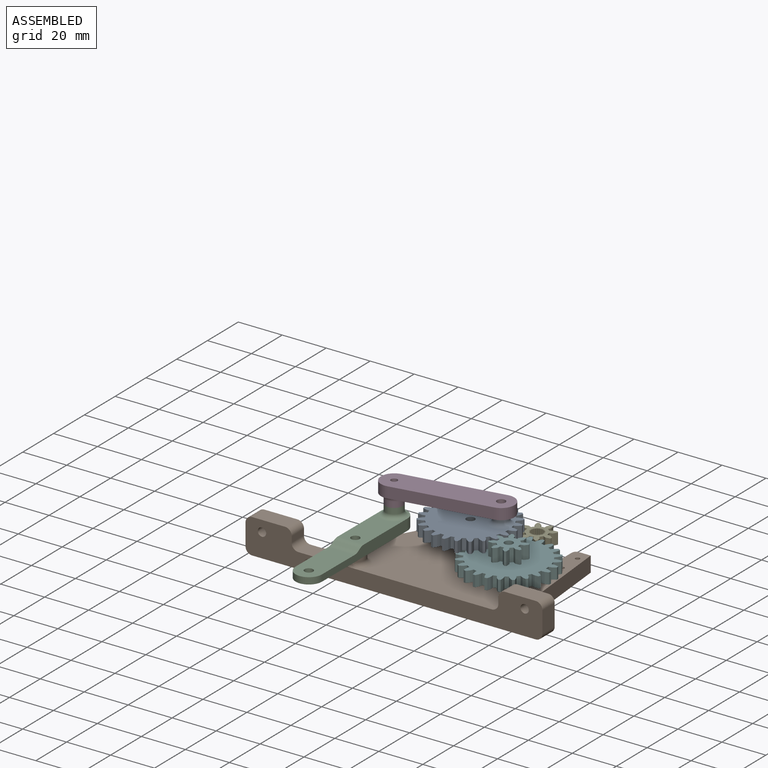
[diagram: assembled view]
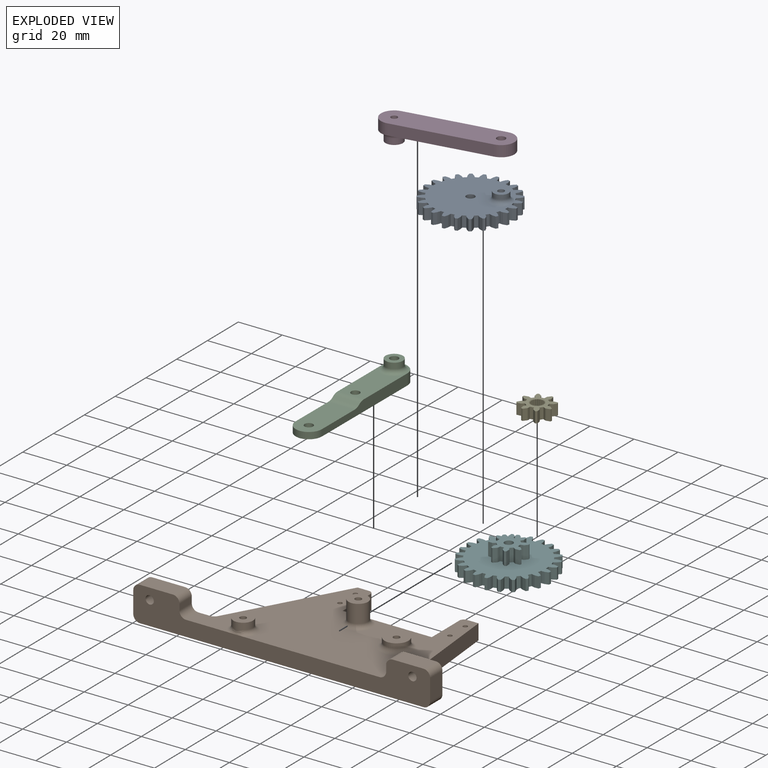
[diagram: exploded view]
GUIDED TOUR — MATED ASSEMBLY (Onshape document 58da2e41f55b1d1046d36618, AutoMate assembly 58da2e41f55b1d1046d36618_b4ae540e2dc44986696f683f_e683a6677ababb7e256b6e3c_default)

This assembly has 6 components, labeled P0..P5 below (a component is one placed occurrence of a part; the same part can appear more than once), held together by 11 mates. A mate is a constraint between two components; its type names the relative motion it leaves free:
  CYLINDRICAL — leaves both rotation about and translation along the listed axis free,
  PLANAR — leaves sliding in the plane through the listed point (normal = the listed direction) and rotation about that normal free.
Axis/direction vectors are unit vectors and 'through' points are millimeter coordinates, both in the assembly's world frame.

MATES
  1. CYLINDRICAL "Cylindrical 5": P2 <-> P3, axis (0.000, 0.000, 1.000) through (-51.00, -20.05, 6.00) mm
  2. CYLINDRICAL "Cylindrical 4": P3 <-> P0, axis (0.000, 0.000, -1.000) through (-7.66, -12.48, 15.20) mm
  3. CYLINDRICAL "Cylindrical 3": P2 <-> P1, axis (0.000, 0.000, -1.000) through (-51.14, -45.05, 1.00) mm
  4. PLANAR "Planar 6": P2 <-> P1, direction (0.000, 0.000, -1.000) through (-57.16, -47.52, 1.00) mm
  5. CYLINDRICAL "Cylindrical 2": P1 <-> P0, axis (0.000, 0.000, 1.000) through (-19.14, -16.00, 6.20) mm
  6. PLANAR "Planar 8": P0 <-> P3, direction (0.000, 0.000, 1.000) through (-7.66, -12.48, 15.20) mm
  7. PLANAR "Planar 7": P2 <-> P1, direction (0.000, 0.000, -1.000) through (-51.16, -47.59, 1.00) mm
  8. PLANAR "Planar 3": P0 <-> P1, direction (0.000, 0.000, -1.000) through (-31.77, -27.38, 6.20) mm
  9. PLANAR "Planar 5": P4 <-> P5, direction (0.000, 0.000, -1.000) through (3.32, 3.25, 0.00) mm
  10. CYLINDRICAL "Cylindrical 6": P5 <-> P1, axis (0.000, 0.000, -1.000) through (4.28, -24.58, 0.00) mm
  11. PLANAR "Planar 9": P5 <-> P1, direction (0.000, 0.000, -1.000) through (4.28, -24.58, 0.00) mm

ASSEMBLY ORDER
  1. P5 — the base component [order verified]
  2. P0 [order verified]
  3. P2 [order verified]
  4. P4 [order verified]
  5. P3 [order verified]
  6. P1 [order verified]
Order-tag legend:
  [order verified] — this step's position reverses a verified removal order: the component was checked to insert without passing through the ones already placed.

Of the 6 components, 1 carries the full construction recipe — the FeatureScript program that regenerates the part's solid from scratch; the rest are supplied as boundary geometry only.
Each toured component is shown spotlighted twice — in the assembled view, then in the exploded view, where a leader line traces a displaced component back to its assembled socket (saturated green if recipe-attached, orange if geometry-only; every other component desaturated gray) — followed by its recipe or geometry summary and the mates that hold it.
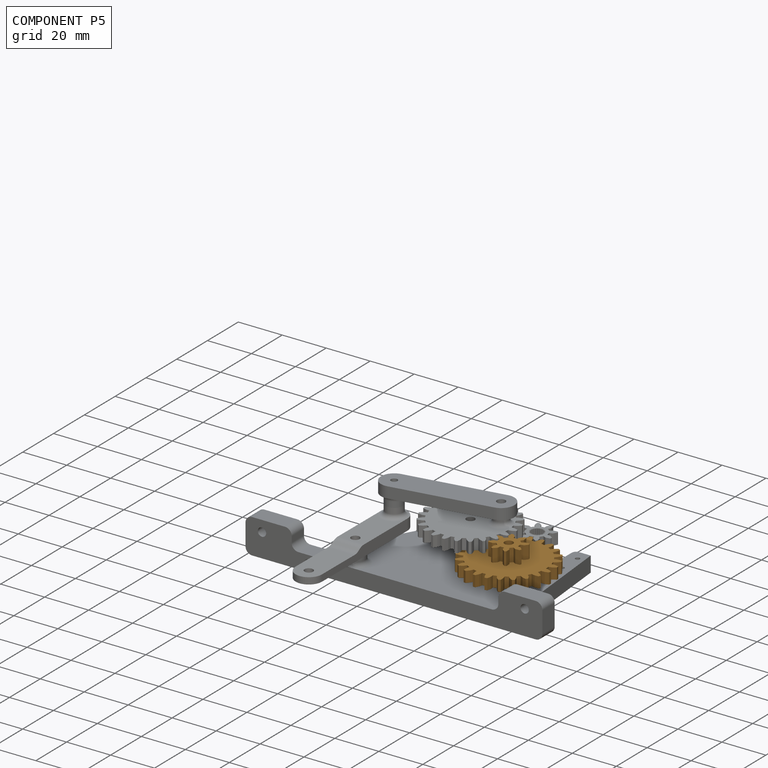
[diagram: component P5 — assembled]
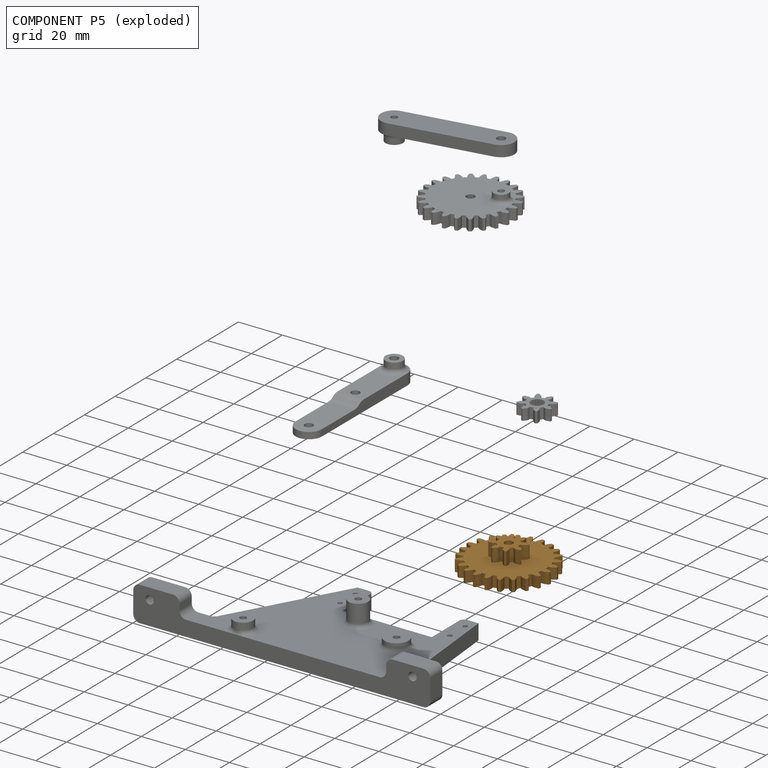
[diagram: component P5 — exploded]
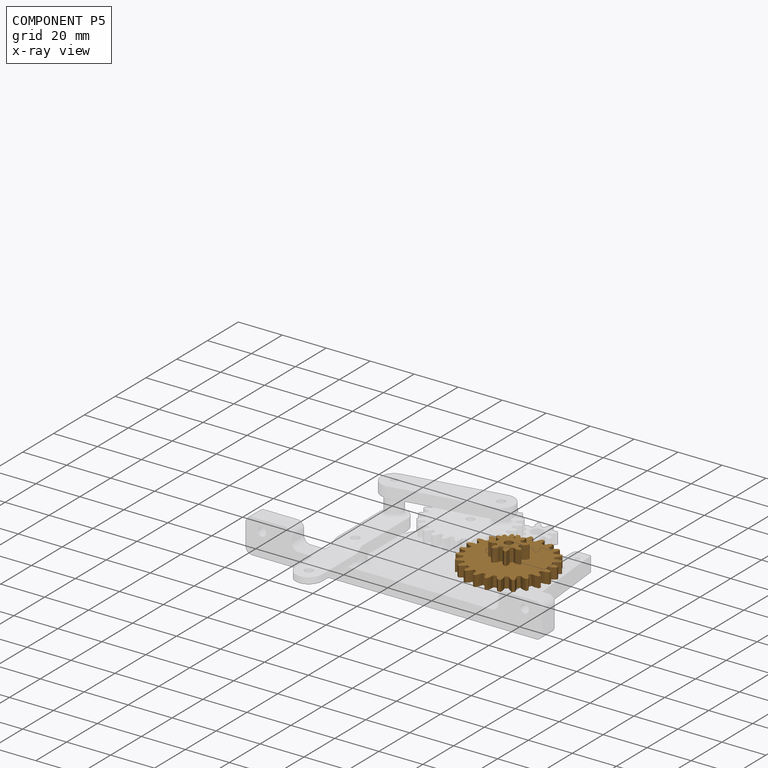
[diagram: component P5 — x-ray view]
COMPONENT P5 — geometry summary (no construction recipe available for this part):
  bounding box: 40.2 x 40.2 x 11.0 mm
  B-rep topology: 1 solid, 260 faces, 1544 edges
  volume: 5932 mm^3 (33% of its bounding box)
  symmetry: 4-fold rotationally symmetric about the z axis; mirror-symmetric across its x mid-plane, y mid-plane
Held by: PLANAR mate "Planar 5" to P4; CYLINDRICAL mate "Cylindrical 6" to P1; PLANAR mate "Planar 9" to P1.
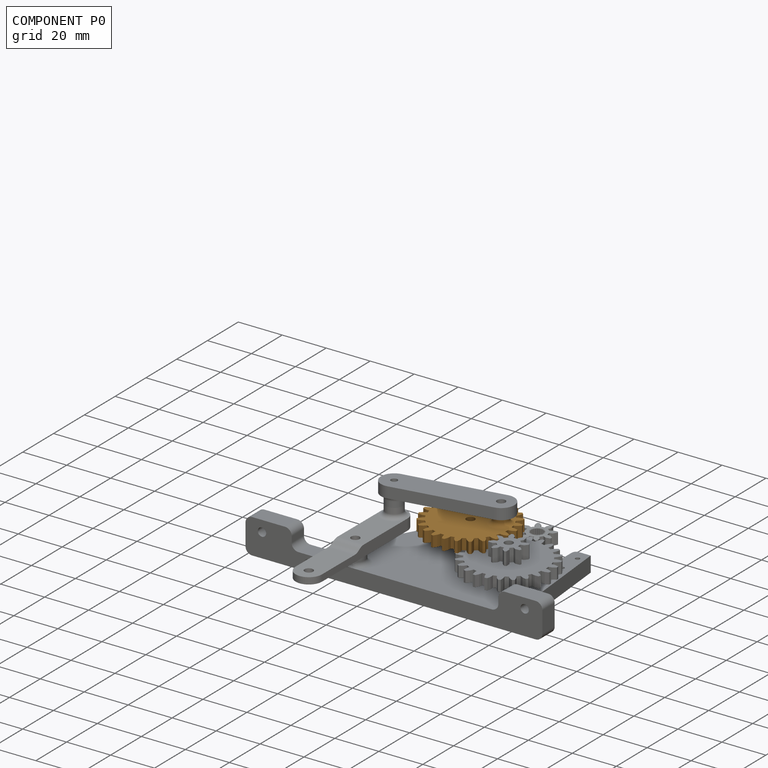
[diagram: component P0 — assembled]
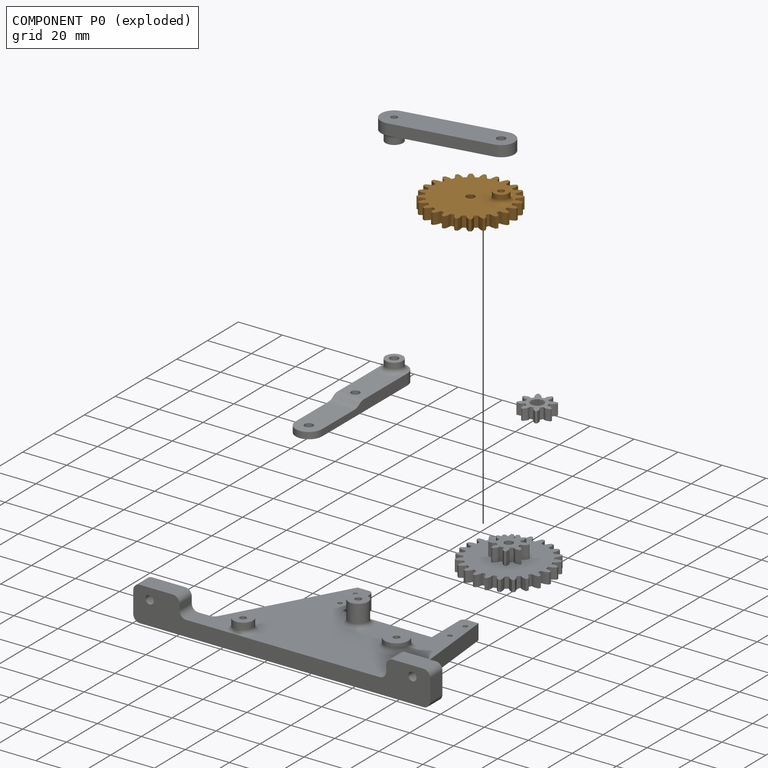
[diagram: component P0 — exploded]
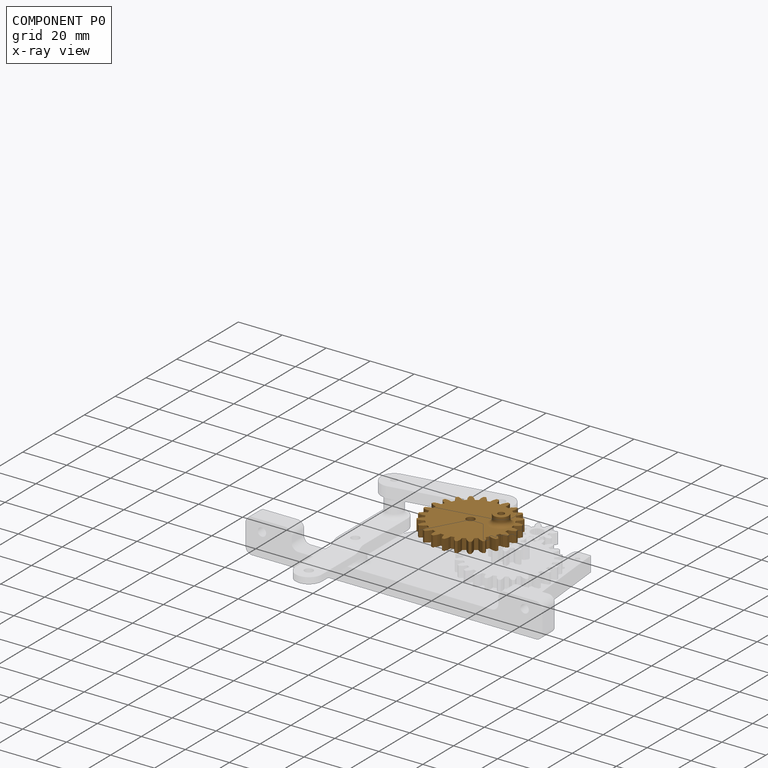
[diagram: component P0 — x-ray view]
COMPONENT P0 — geometry summary (no construction recipe available for this part):
  bounding box: 40.2 x 40.2 x 9.0 mm
  B-rep topology: 1 solid, 200 faces, 1192 edges
  volume: 5422 mm^3 (37% of its bounding box)
Held by: CYLINDRICAL mate "Cylindrical 4" to P3; CYLINDRICAL mate "Cylindrical 2" to P1; PLANAR mate "Planar 8" to P3; PLANAR mate "Planar 3" to P1.
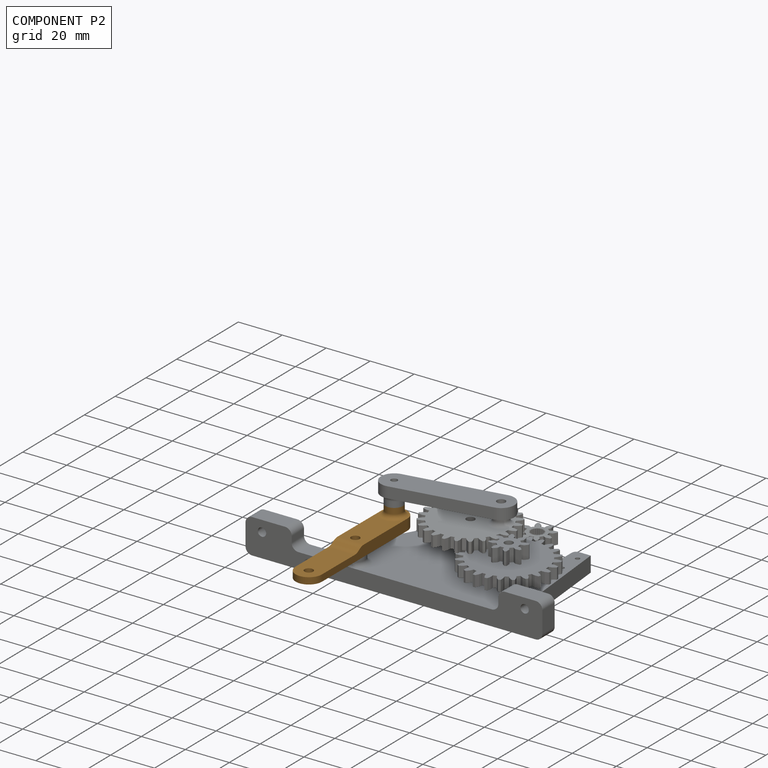
[diagram: component P2 — assembled]
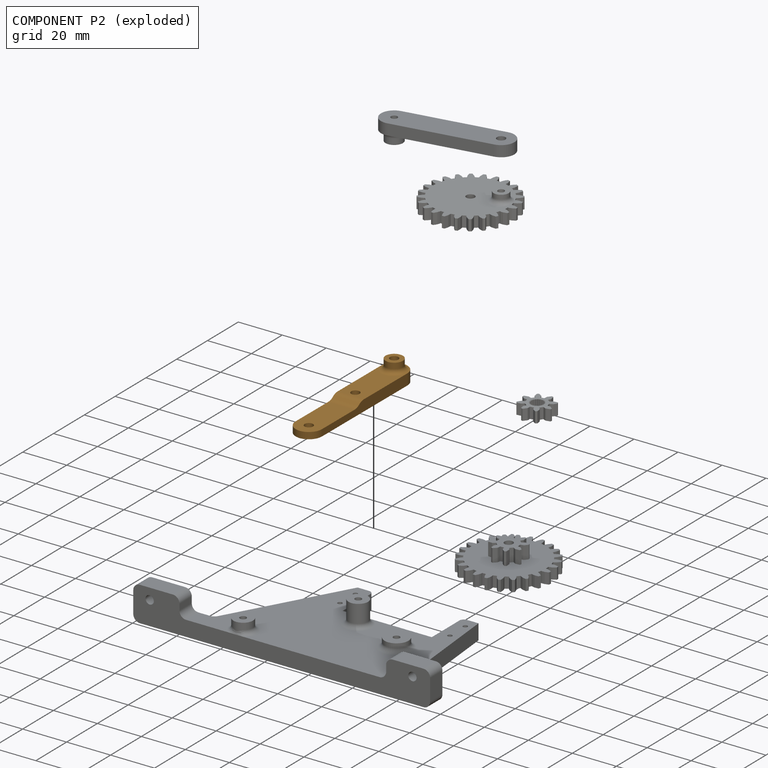
[diagram: component P2 — exploded]
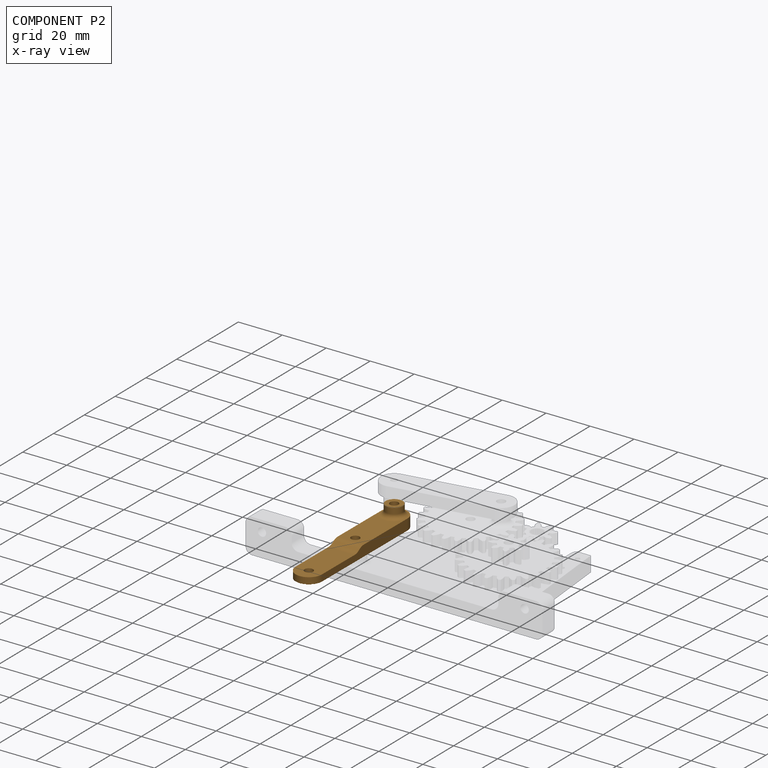
[diagram: component P2 — x-ray view]
COMPONENT P2 — geometry summary (no construction recipe available for this part):
  bounding box: 69.0 x 16.0 x 9.6 mm
  B-rep topology: 1 solid, 15 faces, 70 edges
  volume: 3221 mm^3 (30% of its bounding box)
  symmetry: mirror-symmetric across its y mid-plane
Held by: CYLINDRICAL mate "Cylindrical 5" to P3; CYLINDRICAL mate "Cylindrical 3" to P1; PLANAR mate "Planar 6" to P1; PLANAR mate "Planar 7" to P1.
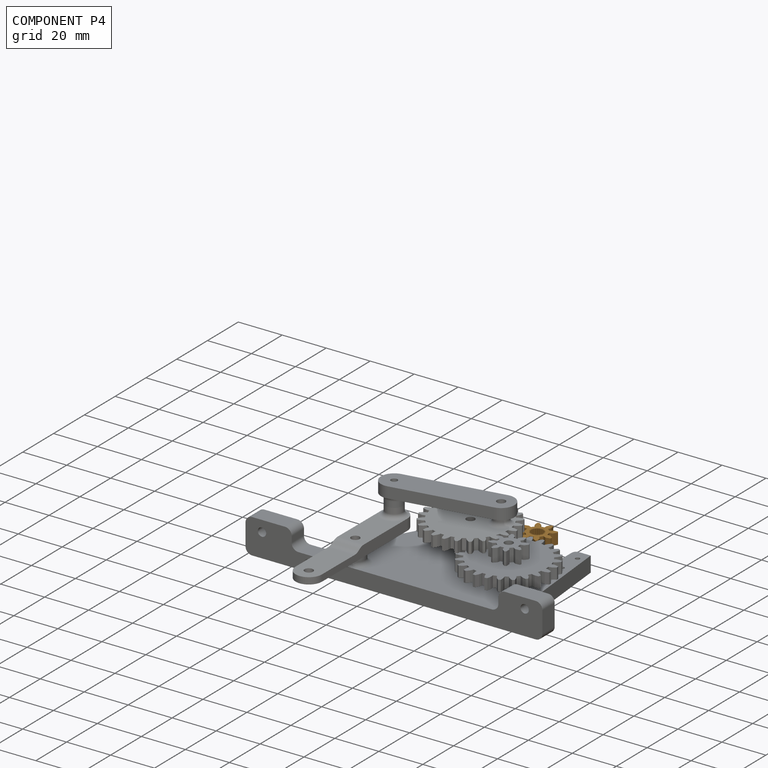
[diagram: component P4 — assembled]
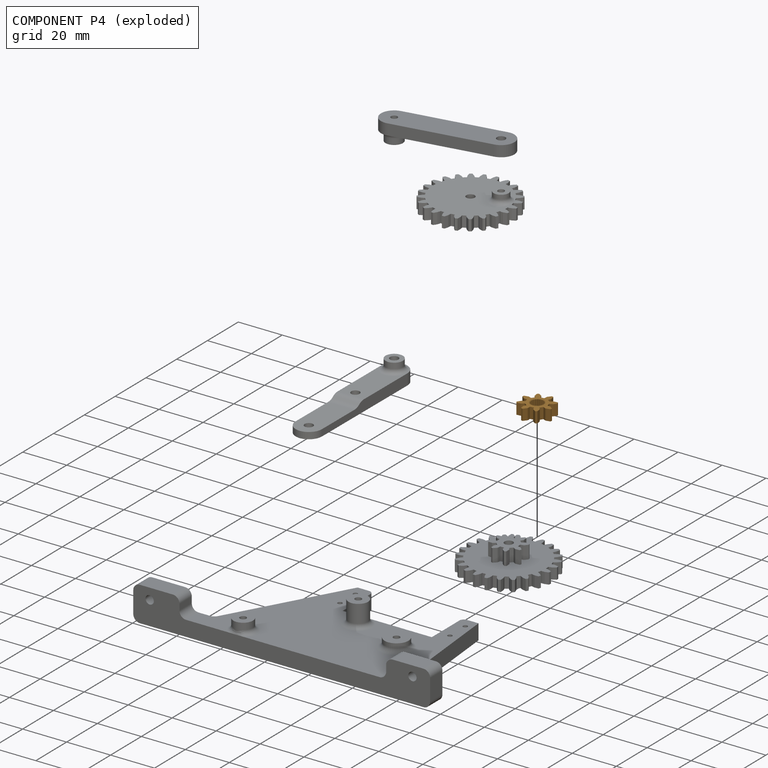
[diagram: component P4 — exploded]
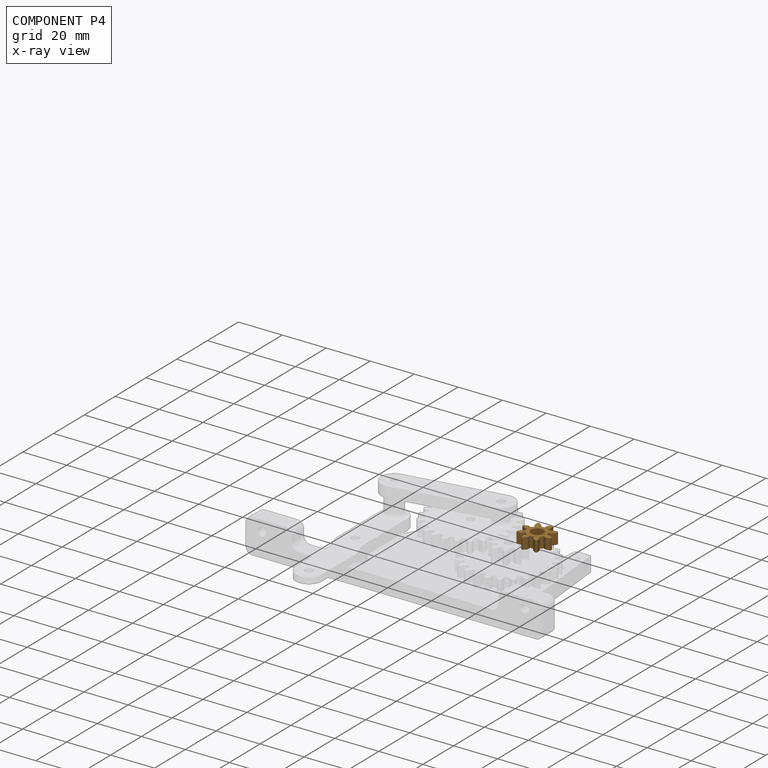
[diagram: component P4 — x-ray view]
COMPONENT P4 — geometry summary (no construction recipe available for this part):
  bounding box: 15.5 x 15.5 x 5.0 mm
  B-rep topology: 1 solid, 188 faces, 1112 edges
  volume: 481 mm^3 (40% of its bounding box)
  symmetry: 2-fold rotationally symmetric about the z axis; mirror-symmetric across its x mid-plane, y mid-plane
Held by: PLANAR mate "Planar 5" to P5.
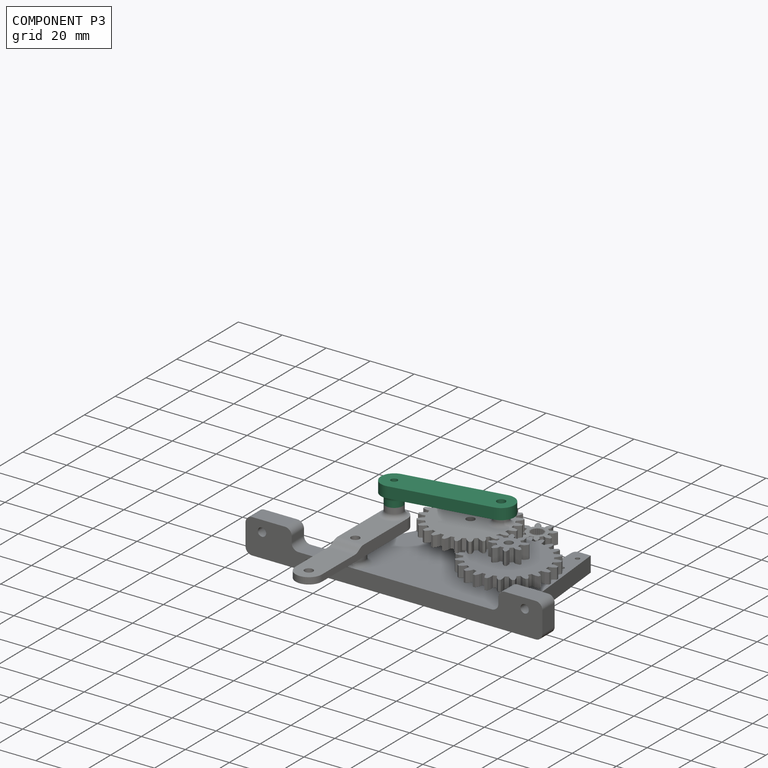
[diagram: component P3 — assembled]
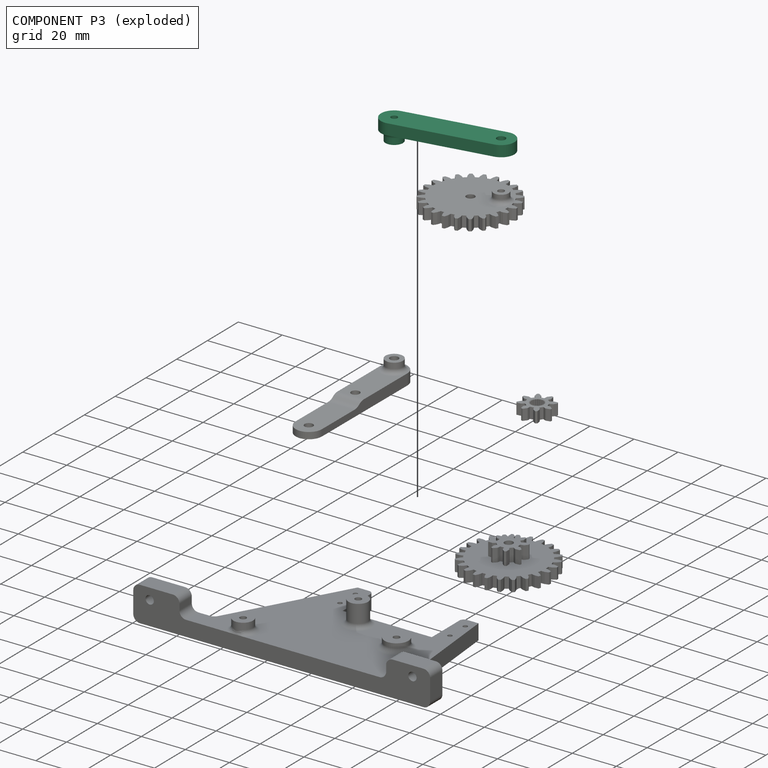
[diagram: component P3 — exploded]
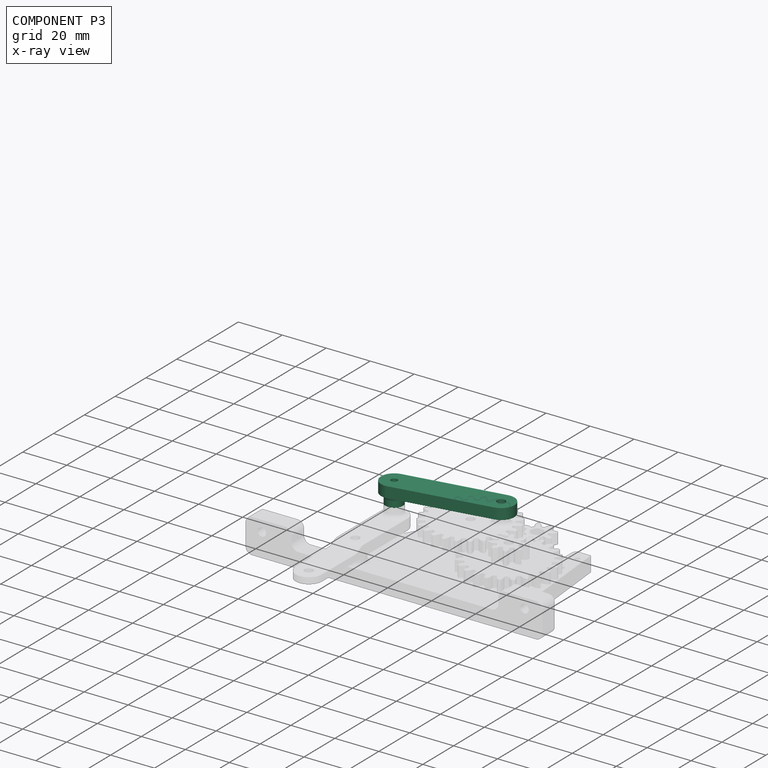
[diagram: component P3 — x-ray view]
COMPONENT P3 — recipe-attached (CADFS 00656384, mesh-verified: the recipe's output STEP matches this component's geometry to below the mesh-comparison resolution (tessellation chordal tolerance ~0.0871 mm)).
Held by: CYLINDRICAL mate "Cylindrical 5" to P2; CYLINDRICAL mate "Cylindrical 4" to P0; PLANAR mate "Planar 8" to P0.
Construction recipe (FeatureScript — the CAD program that rebuilds this solid; sketch coordinates are in the units given by the * unit suffixes, e.g. mm):

FeatureScript 1511;
import(path : "onshape/std/geometry.fs", version : "1511.0");
import(path : "onshape/std/common.fs", version : "1511.0");
const mm = millimeter;
const VERTEX = EntityType.VERTEX;
const EDGE = EntityType.EDGE;
const FACE = EntityType.FACE;
const BODY = EntityType.BODY;
function v(x, y){return vector(x, y);}
function OD(order){return orderDisambiguation(order);}
function OSD(set){return originalSetDisambiguation(set);}
function TD(topology){return topologyDisambiguation(topology);}
function TDD(query){return trueDependencyDisambiguation(query);}
function sQuery(a, b, c) {return sketchEntityQuery(a, b, c);}

annotation { "Feature Type Name" : "Feature", "Feature Type Description" : "" }
export const myFeature = defineFeature(function(context is Context, id is Id, definition is map)
    precondition{}
    {
        {
            var Q0;
            Q0=qCreatedBy(makeId("Top.planeOp"),FACE);
            var sketch = newSketch(context, id + "F0", { "sketchPlane" : qUnion([Q0])});
            skArc(sketch, "E0", {"start": v(0, -6) * mm, "mid": v(6, 0) * mm, "end": v(0, 6) * mm});
            skLineSegment(sketch, "E1", {"start": v(0, 6) * mm, "end": v(-44, 6) * mm});
            skLineSegment(sketch, "E2", {"start": v(0, -6) * mm, "end": v(-44, -6) * mm});
            skArc(sketch, "E3", {"start": v(-44, 6) * mm, "mid": v(-50, 0) * mm, "end": v(-44, -6) * mm});
            skCircle(sketch, "E4", {"center": v(-44, 0) * mm, "radius": 1.93 * mm});
            skCircle(sketch, "E5", {"center": v(0, 0) * mm, "radius": 1.93 * mm});
            skSolve(sketch);
        }
        {
            var Q0;
            Q0=qSketchRegion(id+"F0",true);
            extrude(context, id + "F1", {"entities" : qUnion([Q0]), "depth" : 5 * mm});
        }
        {
            var Q0;
            Q0=makeQuery(id+"F1.opExtrude","CAP_FACE",FACE,{"disambiguationData":[OSD([sQuery(id+"F0.wireOp",EDGE,"E0"),sQuery(id+"F0.wireOp",EDGE,"E1"),sQuery(id+"F0.wireOp",EDGE,"E2"),sQuery(id+"F0.wireOp",EDGE,"E3"),sQuery(id+"F0.wireOp",EDGE,"E4"),sQuery(id+"F0.wireOp",EDGE,"E5")])],"isStart":false});
            var sketch = newSketch(context, id + "F2", { "sketchPlane" : qUnion([Q0])});
            skCircle(sketch, "E6", {"center": v(-44, 0) * mm, "radius": 1.45 * mm});
            skCircle(sketch, "E7", {"center": v(-44, 0) * mm, "radius": 3.95 * mm});
            skSolve(sketch);
        }
        {
            var Q0;
            Q0=qSketchRegion(id+"F2",true);
            var Q1;
            Q1=makeQuery(id+"F1.opExtrude","CAP_FACE",FACE,{"disambiguationData":[OSD([sQuery(id+"F0.wireOp",EDGE,"E0"),sQuery(id+"F0.wireOp",EDGE,"E1"),sQuery(id+"F0.wireOp",EDGE,"E2"),sQuery(id+"F0.wireOp",EDGE,"E3"),sQuery(id+"F0.wireOp",EDGE,"E4"),sQuery(id+"F0.wireOp",EDGE,"E5")])],"isStart":true});
            extrude(context, id + "F3", {"entities" : qUnion([Q0]), "operationType" : NewBodyOperationType.ADD, "depth" : 4.6 * mm, "hasSecondDirection" : true, "secondDirectionBound" : SecondDirectionBoundingType.UP_TO_SURFACE, "secondDirectionOppositeDirection" : true, "secondDirectionBoundEntityFace" : qUnion([Q1]), "secondDirectionDepth" : 25 * mm});
        }
        {
            var Q0;
            Q0=makeQuery(id+"F3.boolean.opBoolean","INTERSECT",EDGE,{"derivedFrom":[makeQuery(id+"F1.opExtrude","CAP_FACE",FACE,{"disambiguationData":[OSD([sQuery(id+"F0.wireOp",EDGE,"E0"),sQuery(id+"F0.wireOp",EDGE,"E1"),sQuery(id+"F0.wireOp",EDGE,"E2"),sQuery(id+"F0.wireOp",EDGE,"E3"),sQuery(id+"F0.wireOp",EDGE,"E4"),sQuery(id+"F0.wireOp",EDGE,"E5")])],"isStart":false}),makeQuery(id+"F3.opExtrude","SWEPT_FACE",FACE,{"disambiguationData":[OSD([sQuery(id+"F2.wireOp",EDGE,"E7")])]})]});
            fillet(context, id + "F4", {"entities" : qUnion([Q0]), "radius" : 2 * mm, "tangentPropagation" : true, "allowEdgeOverflow" : false});
        }
    });
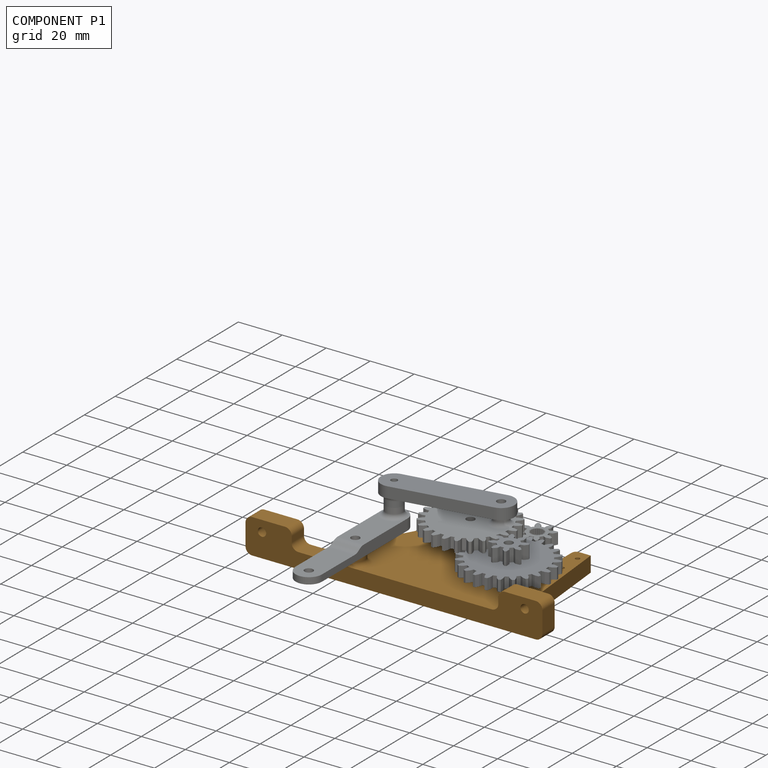
[diagram: component P1 — assembled]
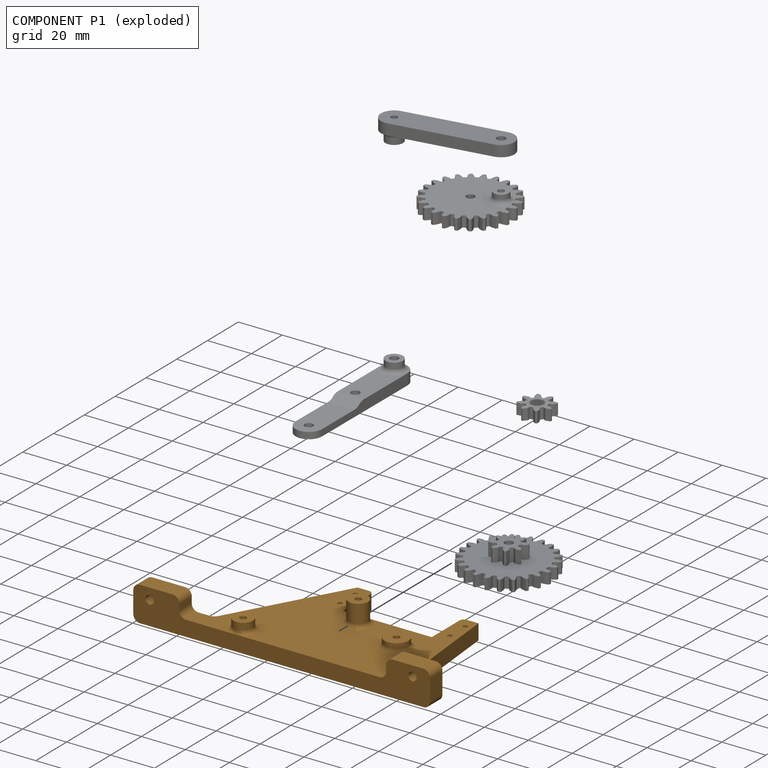
[diagram: component P1 — exploded]
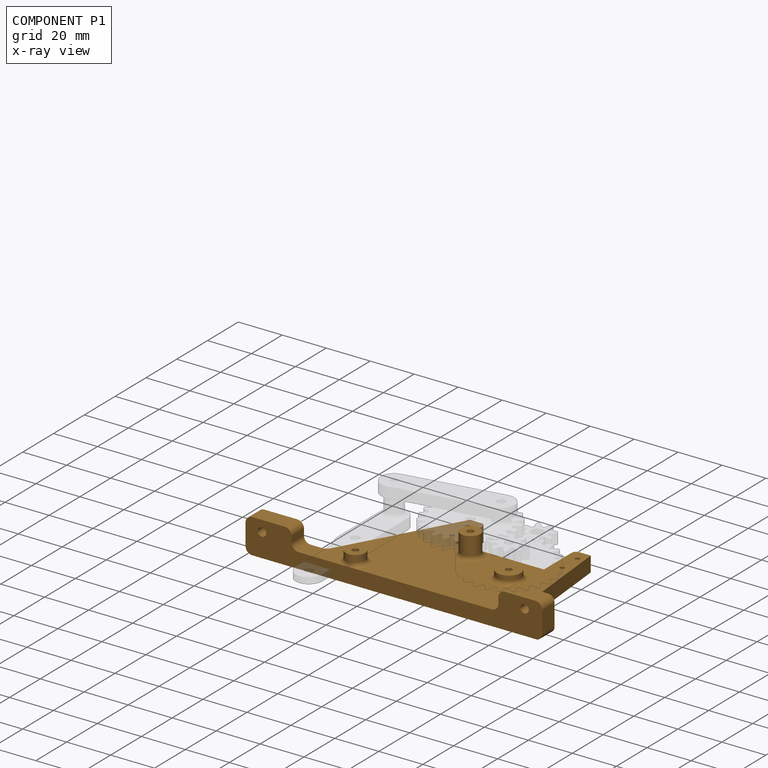
[diagram: component P1 — x-ray view]
COMPONENT P1 — geometry summary (no construction recipe available for this part):
  bounding box: 135.3 x 61.9 x 17.5 mm
  B-rep topology: 1 solid, 58 faces, 324 edges
  volume: 31753 mm^3 (22% of its bounding box)
Held by: CYLINDRICAL mate "Cylindrical 3" to P2; PLANAR mate "Planar 6" to P2; CYLINDRICAL mate "Cylindrical 2" to P0; PLANAR mate "Planar 7" to P2; PLANAR mate "Planar 3" to P0; CYLINDRICAL mate "Cylindrical 6" to P5; PLANAR mate "Planar 9" to P5.
PROVENANCE & LICENSES
Assembly (occurrences, transforms, mates, per-part STEP geometry): AutoMate dataset, Zenodo record 7776208, CC0.
Construction recipes: CADFS (HuggingFace VladPyatov/CADFS, CC-BY-4.0, layered over the ABC dataset), FeatureScript reconstruction programs keyed by ABC model id.
Join: ABC meta listings map ABC model id -> Onshape documentId; within a shared document, parts are matched by geometric signature (bounding-box dims + volume at 0.1% relative tolerance, exact B-rep face/solid counts).
Verification: 1 of this assembly's 6 components carries a recipe attachment, and every attachment is mesh-verified: the CADFS STEP and the AutoMate member STEP were compared as meshes in their shared local frame (symmetric sampled-point-to-mesh distance); worst across the 1 attachment: below the mesh-comparison resolution (tessellation chordal tolerance ~0.0871 mm) on a 58 mm part.
Renders: orthographic iso camera (az 35 / el 25); the floor grid conveys scale (grid pitch printed in each image; no ruler). In the exploded view each component is displaced by its stored offset vector: the offsets alone carry the explosion direction (mate normal/axis signs are not orientation cues and do not encode it), and separation distances are assigned per mate-chain, not proportionally to assembly-order depth.
